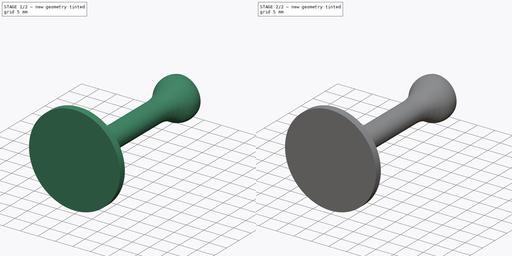
[diagram: build sequence overview — one tinted view per stage of 2, left to right]
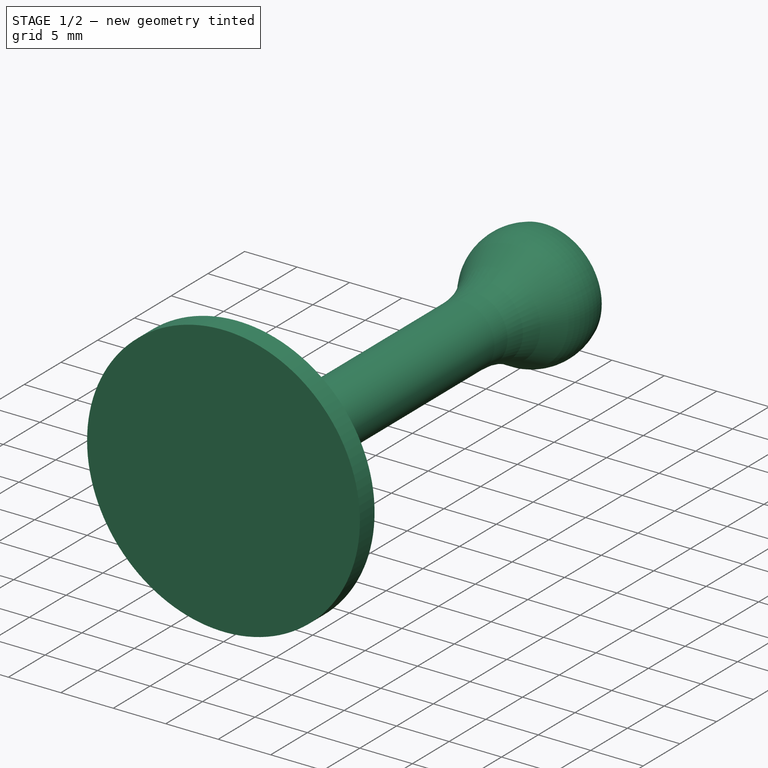
[diagram: stage 1 of 2 — iso view after this stage's code; geometry added in this stage tinted green]
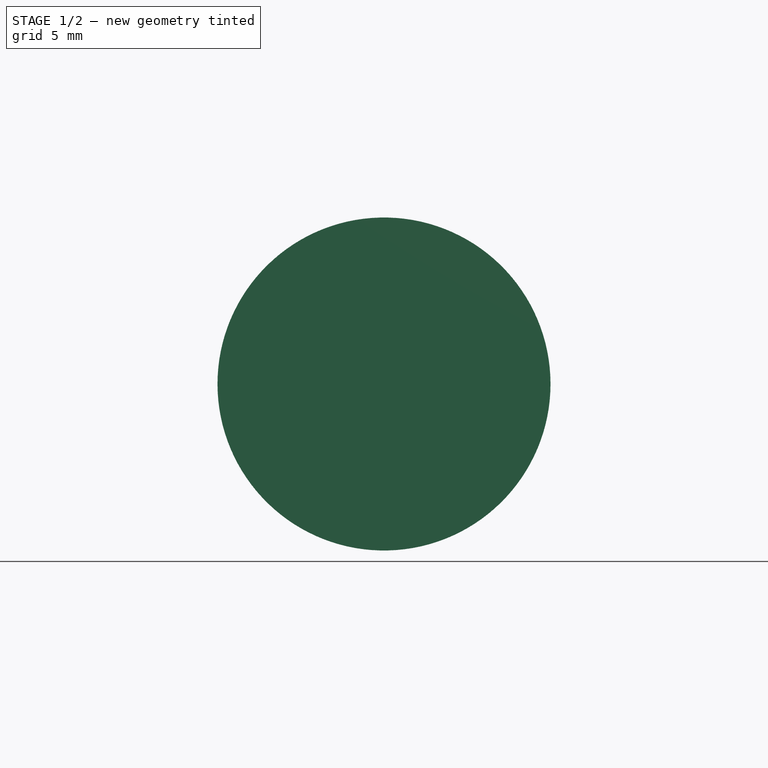
[diagram: stage 1 of 2 — front view after this stage's code; geometry added in this stage tinted green]
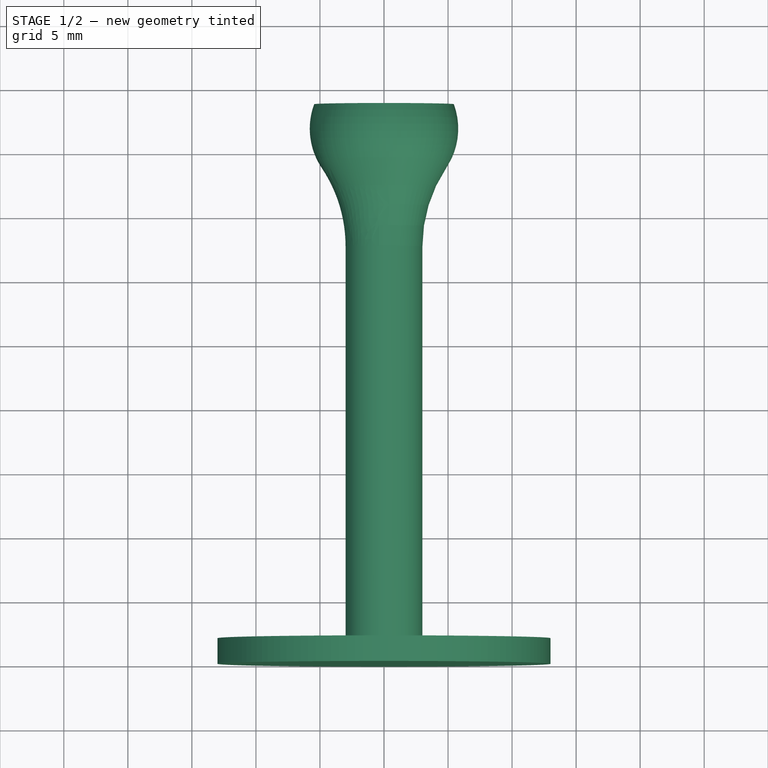
[diagram: stage 1 of 2 — top view after this stage's code; geometry added in this stage tinted green]
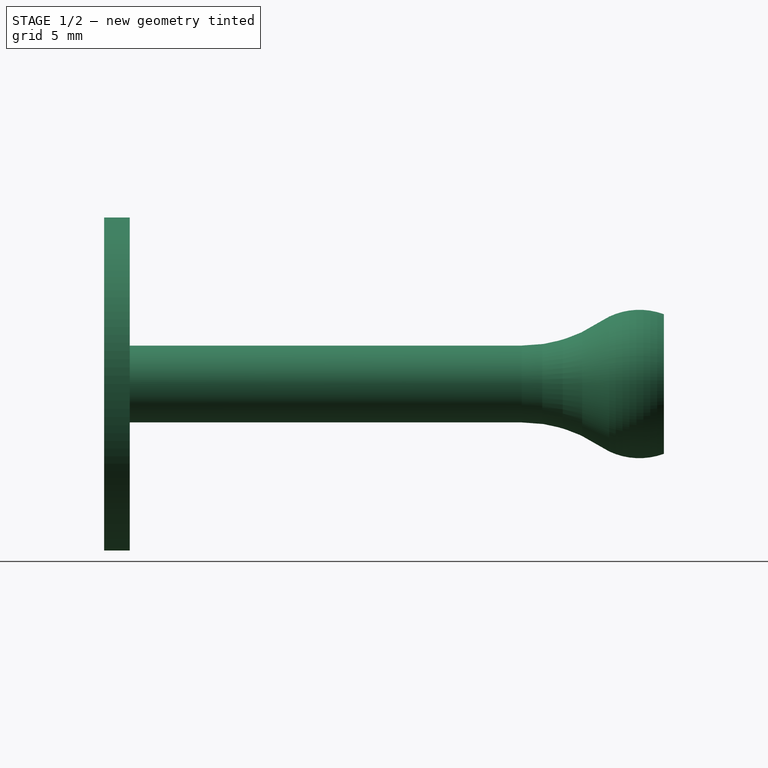
[diagram: stage 1 of 2 — right view after this stage's code; geometry added in this stage tinted green]
FCSTD DOCUMENT  (FreeCAD 0.21R33771 (Git))
Label: bowl_balls
License: All rights reserved
LicenseURL: https://en.wikipedia.org/wiki/All_rights_reserved
objects: Sketcher::SketchObject×3, PartDesign::Fillet×2, PartDesign::Revolution×1, PartDesign::Body×1
note: 10 computed .brp shape members not serialized (recipe doc carries the construction recipe); baked Part::Feature solids carry a one-line shape summary decoded from their .brp

FEATURE [Sketcher::SketchObject] Sketch
  FullyConstrained = true
  MapMode = 5
  Support = -> [XY_Plane]
  sketch-geometry (4):
    g0: LineSegment StartX=-13 StartY=37 StartZ=0 EndX=13 EndY=37 EndZ=0
    g1: LineSegment StartX=13 StartY=37 StartZ=0 EndX=13 EndY=0 EndZ=0
    g2: LineSegment StartX=13 StartY=0 StartZ=0 EndX=-13 EndY=0 EndZ=0
    g3: LineSegment StartX=-13 StartY=0 StartZ=0 EndX=-13 EndY=37 EndZ=0
  constraints (11):
    c: Coincident(g0,g1)
    c: Coincident(g1,g2)
    c: Coincident(g2,g3)
    c: Coincident(g3,g0)
    c: Horizontal(g0)
    c: Horizontal(g2)
    c: Vertical(g1)
    c: Vertical(g3)
    c: DistanceY(g3,g3) = 37
    c: DistanceX(g2,g2) = 26
    c: Symmetric(g2,g1,g-1)
FEATURE [Sketcher::SketchObject] Sketch001
  FullyConstrained = false
  MapMode = 5
  Support = -> [XY_Plane]
  sketch-geometry (10):
    g0: ArcOfCircle CenterX=-0.294523 CenterY=41.7886 CenterZ=0 NormalX=0 NormalY=0 NormalZ=1 AngleXU=0 Radius=3.8 StartAngle=2.61452 EndAngle=4.78997
    g1: ArcOfCircle CenterX=-0.294523 CenterY=41.7886 CenterZ=0 NormalX=0 NormalY=0 NormalZ=1 AngleXU=0 Radius=5.5 StartAngle=2.78665 EndAngle=4.19811
    g2: LineSegment StartX=-13 StartY=0 StartZ=0 EndX=-13 EndY=2 EndZ=0
    g3: LineSegment StartX=-13 StartY=2 StartZ=0 EndX=-3 EndY=2 EndZ=0
    g4: LineSegment StartX=-3 StartY=2 StartZ=0 EndX=-3 EndY=37 EndZ=0
    g5: LineSegment StartX=1.3e-15 StartY=0 StartZ=0 EndX=-13 EndY=0 EndZ=0
    g6: LineSegment StartX=1.3e-15 StartY=38 StartZ=0 EndX=1.3e-15 EndY=0 EndZ=0
    g7: LineSegment StartX=-5.4517 StartY=43.7 StartZ=0 EndX=-3.57879 EndY=43.7 EndZ=0
    g8: LineSegment StartX=1.3e-15 StartY=38 StartZ=0 EndX=1.3e-15 EndY=0 EndZ=0
    g9: LineSegment StartX=1.3e-15 StartY=38 StartZ=0 EndX=1.3e-15 EndY=0 EndZ=0
  constraints (27):
    c: Diameter(g0) = 7.6
    c: Coincident(g1,g0)
    c: Diameter(g1) = 11
    c: Vertical(g2)
    c: Coincident(g2,g3)
    c: Horizontal(g3)
    c: Coincident(g3,g4)
    c: Vertical(g4)
    c: Coincident(g5,g-1)
    c: Coincident(g5,g2)
    c: Coincident(g6,g5)
    c: Vertical(g6)
    c: Coincident(g6,g0)
    c: DistanceY(g2,g2) = 2
    c: Coincident(g4,g1)
    c: Coincident(g7,g1)
    c: Coincident(g7,g0)
    c: Horizontal(g7)
    c: Coincident(g8,g0)
    c: Coincident(g8,g5)
    c: DistanceY(g4,g4) = 35
    c: Horizontal(g5)
    c: Coincident(g9,g0)
    c: Coincident(g9,g5)
    c: DistanceY(g1,g0) = 1
    c: DistanceX(g1,g0) = 3
    c: DistanceY(g0,g0) = 5.7
FEATURE [PartDesign::Revolution] Revolution
  Angle = 360
  Axis = (0,1,0)
  Base = (0,0,0)
  Profile = -> Sketch001
  ReferenceAxis = -> Sketch001 [V_Axis]
FEATURE [PartDesign::Fillet] Fillet
  Base = -> Revolution [Edge9]
  BaseFeature = -> Revolution
  Radius = 11
  SupportTransform = false
  UseAllEdges = false
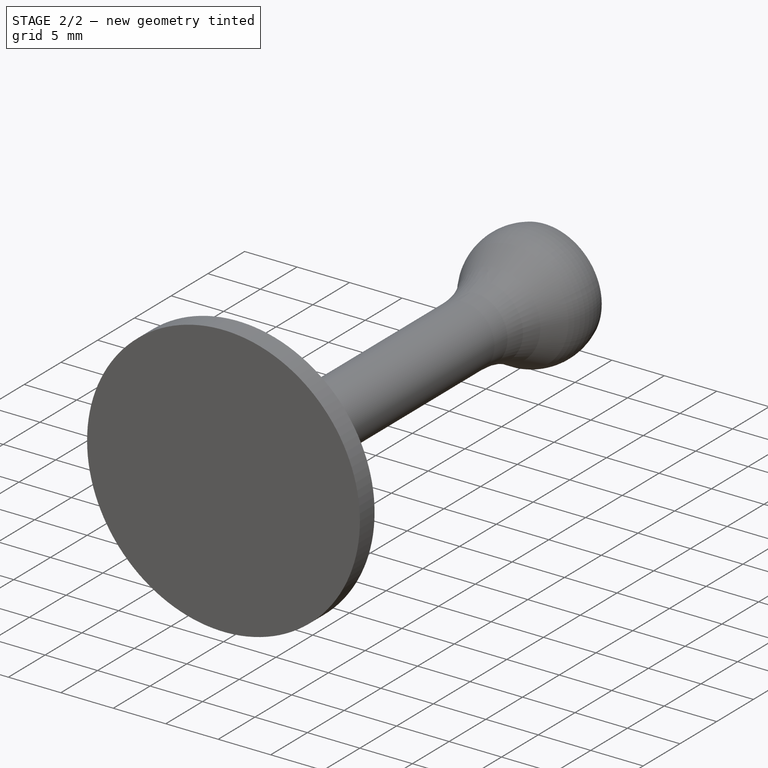
[diagram: stage 2 of 2 — iso view after this stage's code; geometry added in this stage tinted green]
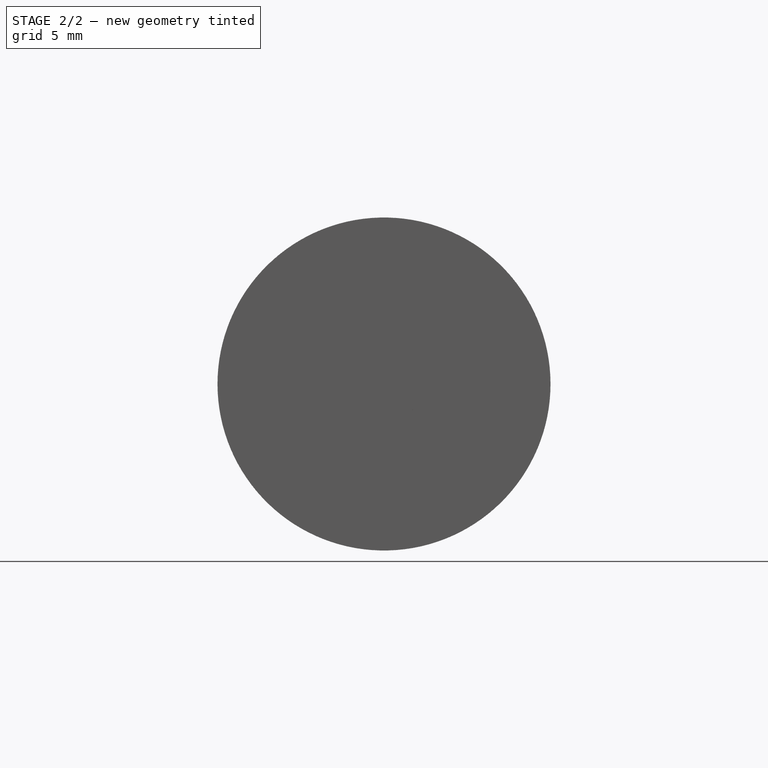
[diagram: stage 2 of 2 — front view after this stage's code; geometry added in this stage tinted green]
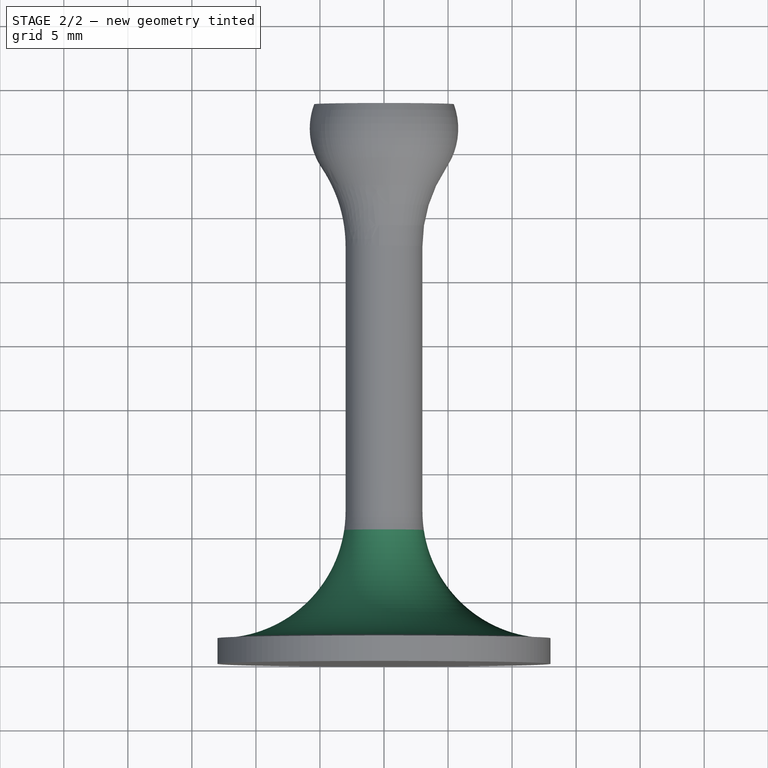
[diagram: stage 2 of 2 — top view after this stage's code; geometry added in this stage tinted green]
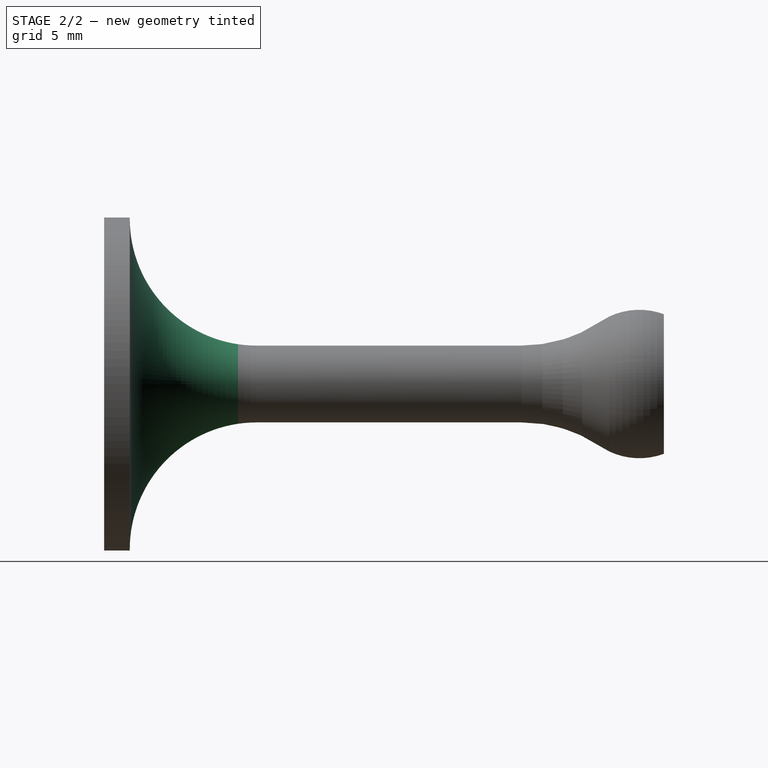
[diagram: stage 2 of 2 — right view after this stage's code; geometry added in this stage tinted green]
FEATURE [PartDesign::Fillet] Fillet001
  Base = -> Fillet [Edge3]
  BaseFeature = -> Fillet
  Radius = 9.9
  SupportTransform = false
  UseAllEdges = false
FEATURE [Sketcher::SketchObject] Sketch002
  FullyConstrained = true
  MapMode = 5
  Placement = pos=(0,0,0) rot=(1,0,0;1.5708rad)
  Support = -> [XZ_Plane]
  sketch-geometry (2):
    g0: Circle CenterX=-8 CenterY=0 CenterZ=0 NormalX=0 NormalY=0 NormalZ=1 AngleXU=0 Radius=1.5
    g1: Circle CenterX=8 CenterY=0 CenterZ=0 NormalX=0 NormalY=0 NormalZ=1 AngleXU=0 Radius=1.5
  constraints (6):
    c: PointOnObject(g0,g-1)
    c: PointOnObject(g1,g-1)
    c: Diameter(g1) = 3
    c: Diameter(g0) = 3
    c: DistanceX(g-1,g1) = 8
    c: DistanceX(g0,g-1) = 8
FEATURE [PartDesign::Body] Body
  Group = -> [Sketch,Sketch001,Revolution,Fillet,Fillet001,Sketch002]
  Origin = -> Origin
  Tip = -> Fillet001
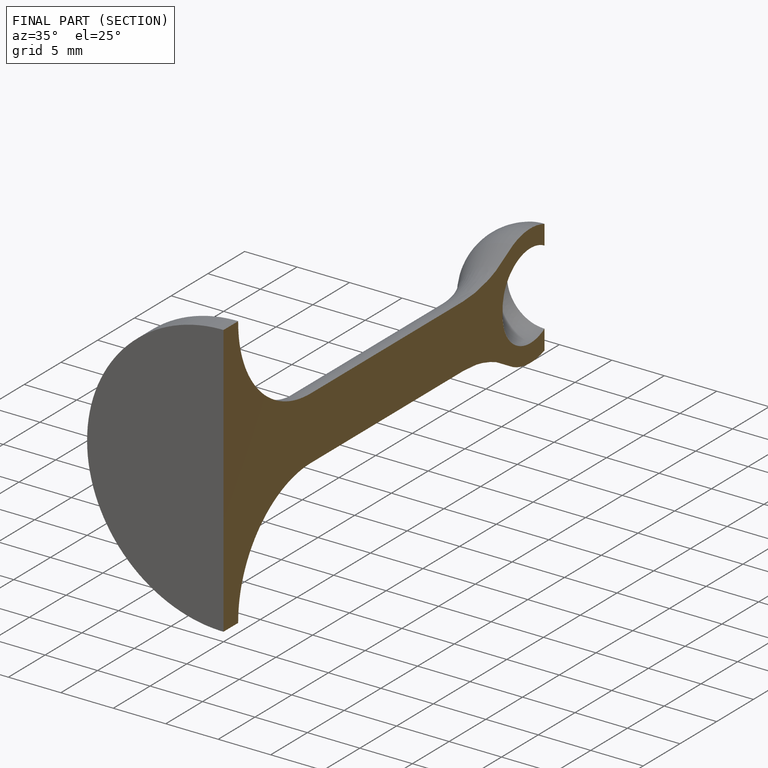
[diagram: finished part — half-section view (interior)]
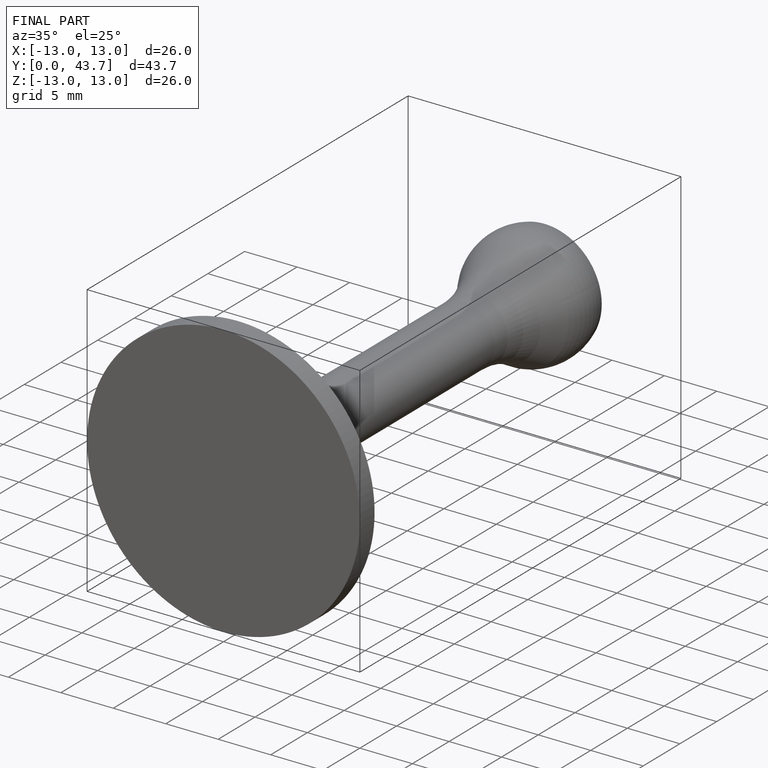
[diagram: finished part — iso view with bounding-box wireframe]
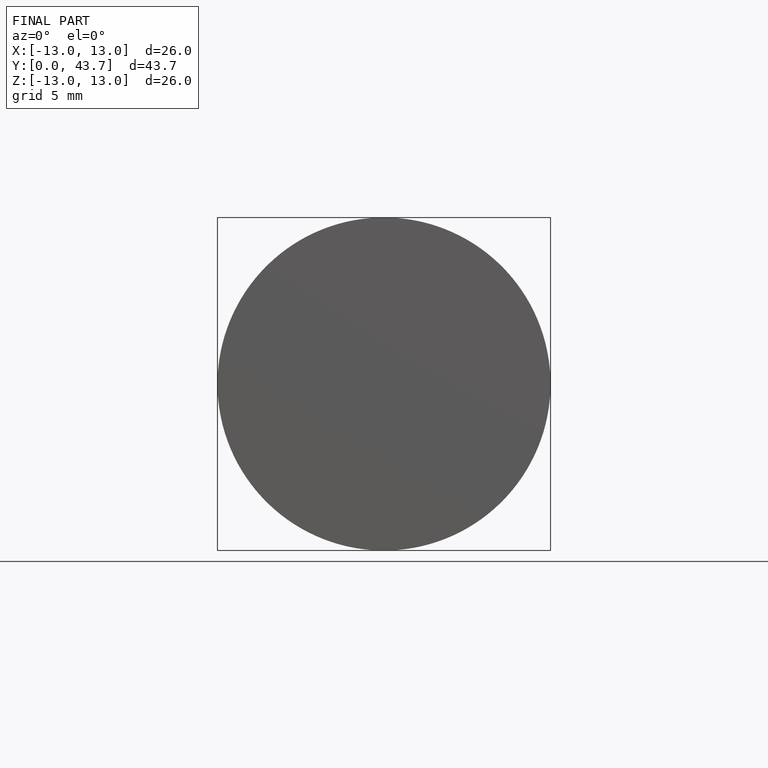
[diagram: finished part — front view with bounding-box wireframe]
